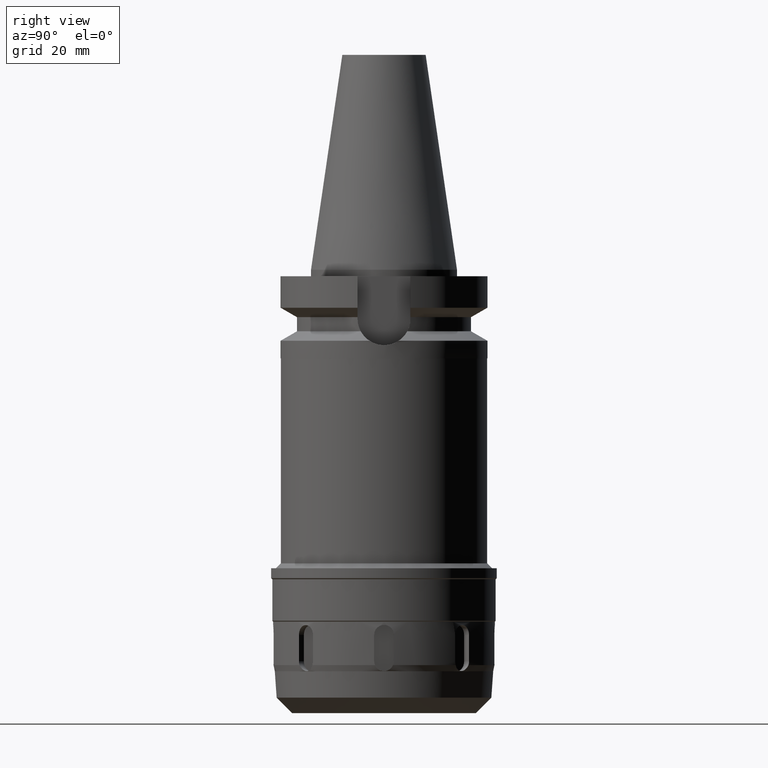
[diagram: clean part render]
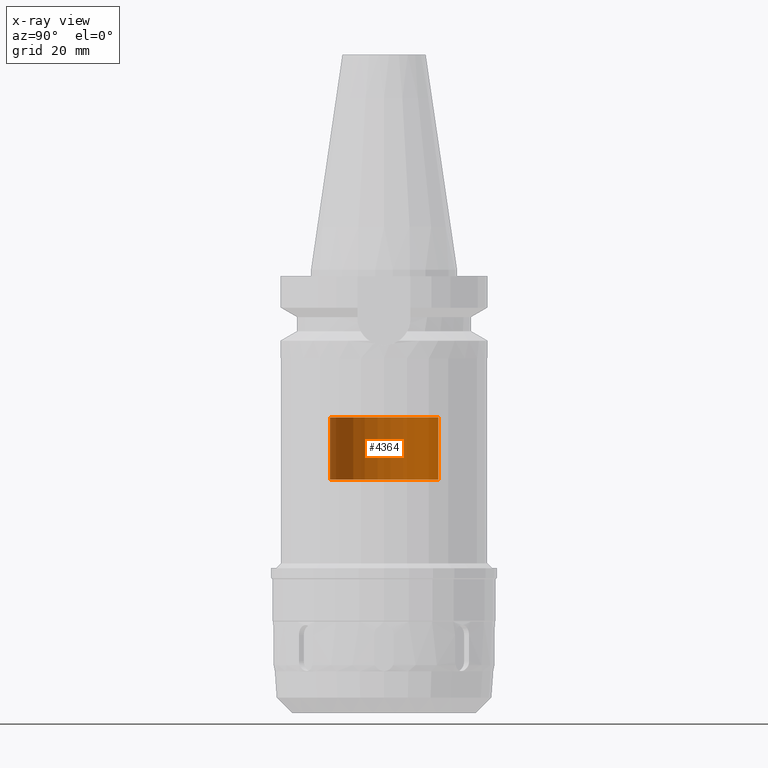
[diagram: x-ray — body ghosted, one internal face saturated and labeled with its STEP entity id]
A machine part, right view, then the same camera in x-ray: the body is ghosted and one INTERNAL B-rep face — a face not visible from any outside direction — is saturated and labeled: STEP entity #4364.
In plain terms, the highlighted cylindrical surface (partial cylindrical patch) has radius 16.5 mm, axis along (0, 0, -1).
Its self-contained STEP definition (entity closure, byte-faithful):
#2196=CARTESIAN_POINT('',(0.E0,2.148275415064E-14,-6.4E1));
#2197=DIRECTION('',(0.E0,0.E0,-1.E0));
#2198=DIRECTION('',(0.E0,-1.E0,0.E0));
#2199=AXIS2_PLACEMENT_3D('',#2196,#2197,#2198);
#2228=DIRECTION('',(0.E0,0.E0,1.E0));
#2229=VECTOR('',#2228,1.9E1);
#2230=CARTESIAN_POINT('',(0.E0,-1.65E1,-6.4E1));
#2231=LINE('',#2230,#2229);
#2235=DIRECTION('',(0.E0,0.E0,1.E0));
#2236=VECTOR('',#2235,1.9E1);
#2237=CARTESIAN_POINT('',(0.E0,1.65E1,-6.4E1));
#2238=LINE('',#2237,#2236);
#2250=CARTESIAN_POINT('',(0.E0,2.148275415064E-14,-4.5E1));
#2251=DIRECTION('',(0.E0,0.E0,1.E0));
#2252=DIRECTION('',(0.E0,1.E0,0.E0));
#2253=AXIS2_PLACEMENT_3D('',#2250,#2251,#2252);
#2522=CARTESIAN_POINT('',(0.E0,-1.65E1,-4.5E1));
#2523=CARTESIAN_POINT('',(0.E0,1.65E1,-4.5E1));
#2524=VERTEX_POINT('',#2522);
#2525=VERTEX_POINT('',#2523);
#2526=CARTESIAN_POINT('',(0.E0,1.65E1,-6.4E1));
#2527=VERTEX_POINT('',#2526);
#2528=CARTESIAN_POINT('',(0.E0,-1.65E1,-6.4E1));
#2529=VERTEX_POINT('',#2528);
#4350=CARTESIAN_POINT('',(0.E0,2.148275415064E-14,7.542E1));
#4351=DIRECTION('',(0.E0,0.E0,-1.E0));
#4352=DIRECTION('',(0.E0,-1.E0,0.E0));
#4353=AXIS2_PLACEMENT_3D('',#4350,#4351,#4352);
#4354=CYLINDRICAL_SURFACE('',#4353,1.65E1);
#4356=ORIENTED_EDGE('',*,*,#4355,.F.);
#4357=ORIENTED_EDGE('',*,*,#4339,.F.);
#4359=ORIENTED_EDGE('',*,*,#4358,.T.);
#4361=ORIENTED_EDGE('',*,*,#4360,.F.);
#4362=EDGE_LOOP('',(#4356,#4357,#4359,#4361));
#4363=FACE_OUTER_BOUND('',#4362,.F.);
#2200=CIRCLE('',#2199,1.65E1);
#2254=CIRCLE('',#2253,1.65E1);
#4339=EDGE_CURVE('',#2529,#2527,#2200,.T.);
#4355=EDGE_CURVE('',#2527,#2525,#2238,.T.);
#4358=EDGE_CURVE('',#2529,#2524,#2231,.T.);
#4360=EDGE_CURVE('',#2525,#2524,#2254,.T.);
#4364=ADVANCED_FACE('',(#4363),#4354,.F.);